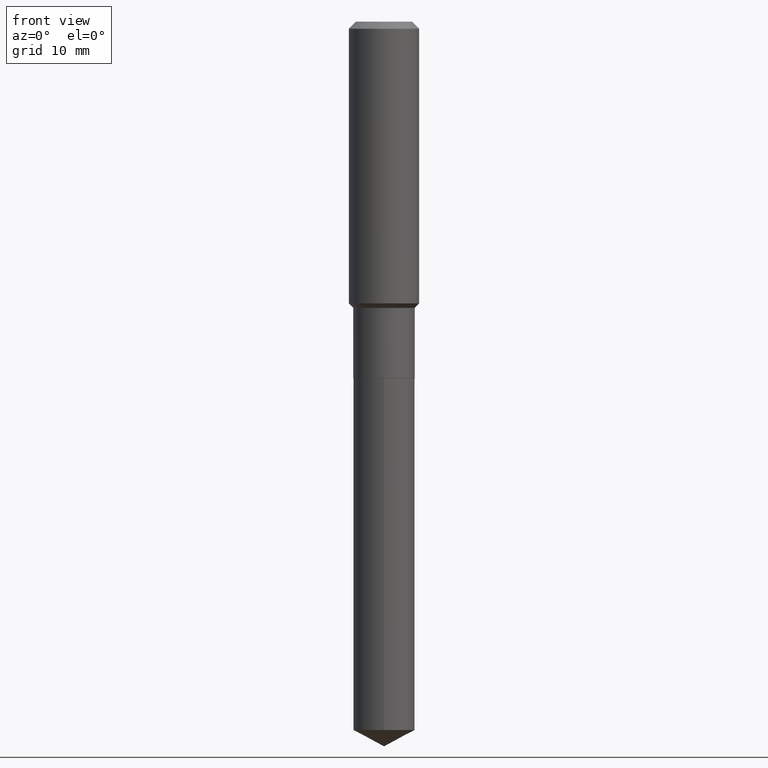
[diagram: clean part render]
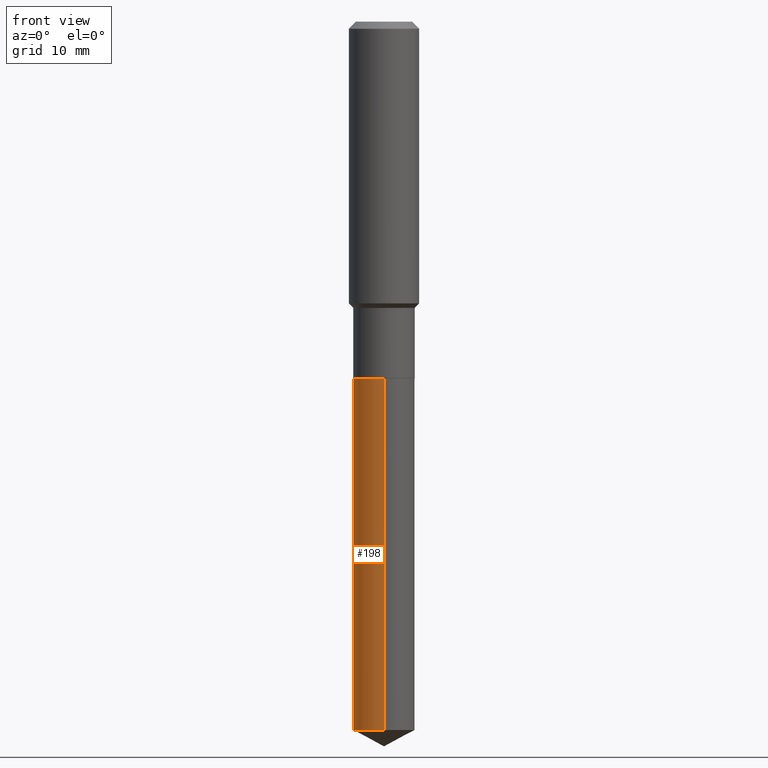
[diagram: same view with one face highlighted and labeled with its STEP entity id]
A machine part, front view. The second image highlights one B-rep face of the part: STEP entity #198.
In plain terms, the highlighted cylindrical surface (edge-blend (fillet) strip) has radius 4.3663 mm, axis along (-0, 0, 1).
Its self-contained STEP definition (entity closure, byte-faithful):
#5 = DIRECTION ( 'NONE',  ( -6.982962677686266711E-15, -1.000000000000000000, 3.178415350394722068E-15 ) ) ;
#6 = CARTESIAN_POINT ( 'NONE',  ( 9.692712207603256326E-29, -1.383904135755968393E-14, -3.963599148697392494 ) ) ;
#25 = ORIENTED_EDGE ( 'NONE', *, *, #359, .F. ) ;
#31 = EDGE_CURVE ( 'NONE', #162, #445, #122, .T. ) ;
#44 = ORIENTED_EDGE ( 'NONE', *, *, #302, .T. ) ;
#67 = DIRECTION ( 'NONE',  ( -2.445394639609318977E-29, 3.491587549601015898E-15, 1.000000000000000000 ) ) ;
#74 = VECTOR ( 'NONE', #450, 39.37007874015748143 ) ;
#76 = LINE ( 'NONE', #306, #74 ) ;
#98 = CARTESIAN_POINT ( 'NONE',  ( -1.200371284294220332E-15, -0.1719000000000069361, -1.996799999999999020 ) ) ;
#104 = CYLINDRICAL_SURFACE ( 'NONE', #308, 0.1718999999999999695 ) ;
#105 = CARTESIAN_POINT ( 'NONE',  ( 1.221422962771708638E-15, 0.1718999999999861472, -3.963599148697392938 ) ) ;
#112 = EDGE_LOOP ( 'NONE', ( #25, #393, #44, #339 ) ) ;
#114 = CIRCLE ( 'NONE', #390, 0.1718999999999999695 ) ;
#122 = CIRCLE ( 'NONE', #416, 0.1718999999999999695 ) ;
#136 = VERTEX_POINT ( 'NONE', #215 ) ;
#138 = DIRECTION ( 'NONE',  ( -6.982962677686266711E-15, -1.000000000000000000, 3.178415350394722068E-15 ) ) ;
#153 = EDGE_CURVE ( 'NONE', #136, #347, #114, .T. ) ;
#162 = VERTEX_POINT ( 'NONE', #105 ) ;
#179 = CARTESIAN_POINT ( 'NONE',  ( 4.883112112190479937E-29, -6.971789937401991965E-15, -1.996799999999999686 ) ) ;
#198 = ADVANCED_FACE ( 'NONE', ( #404 ), #104, .T. ) ;
#215 = CARTESIAN_POINT ( 'NONE',  ( 1.221422962771709230E-15, 0.1718999999999930028, -1.996800000000000130 ) ) ;
#265 = CARTESIAN_POINT ( 'NONE',  ( -1.200371284294220332E-15, -0.1719000000000069361, -1.996799999999999020 ) ) ;
#287 = VECTOR ( 'NONE', #67, 39.37007874015748143 ) ;
#302 = EDGE_CURVE ( 'NONE', #445, #347, #449, .T. ) ;
#306 = CARTESIAN_POINT ( 'NONE',  ( 1.221422962771660715E-15, 0.1718999999999930028, -1.996800000000000130 ) ) ;
#308 = AXIS2_PLACEMENT_3D ( 'NONE', #179, #324, #333 ) ;
#324 = DIRECTION ( 'NONE',  ( -2.445394639609318977E-29, 3.491587549601015898E-15, 1.000000000000000000 ) ) ;
#333 = DIRECTION ( 'NONE',  ( -6.982962677686266711E-15, -1.000000000000000000, 3.178415350394722068E-15 ) ) ;
#339 = ORIENTED_EDGE ( 'NONE', *, *, #153, .F. ) ;
#346 = CARTESIAN_POINT ( 'NONE',  ( -1.200371284294172211E-15, -0.1719000000000137640, -3.963599148697392049 ) ) ;
#347 = VERTEX_POINT ( 'NONE', #265 ) ;
#359 = EDGE_CURVE ( 'NONE', #162, #136, #76, .T. ) ;
#390 = AXIS2_PLACEMENT_3D ( 'NONE', #476, #437, #138 ) ;
#393 = ORIENTED_EDGE ( 'NONE', *, *, #31, .T. ) ;
#404 = FACE_OUTER_BOUND ( 'NONE', #112, .T. ) ;
#416 = AXIS2_PLACEMENT_3D ( 'NONE', #6, #460, #5 ) ;
#437 = DIRECTION ( 'NONE',  ( -2.445394639609318977E-29, 3.491587549601015898E-15, 1.000000000000000000 ) ) ;
#445 = VERTEX_POINT ( 'NONE', #346 ) ;
#449 = LINE ( 'NONE', #98, #287 ) ;
#450 = DIRECTION ( 'NONE',  ( -2.445394639609318977E-29, 3.491587549601015898E-15, 1.000000000000000000 ) ) ;
#460 = DIRECTION ( 'NONE',  ( -2.445394639609318977E-29, 3.491587549601015898E-15, 1.000000000000000000 ) ) ;
#476 = CARTESIAN_POINT ( 'NONE',  ( 4.883112112190479937E-29, -6.971789937401991965E-15, -1.996799999999999686 ) ) ;